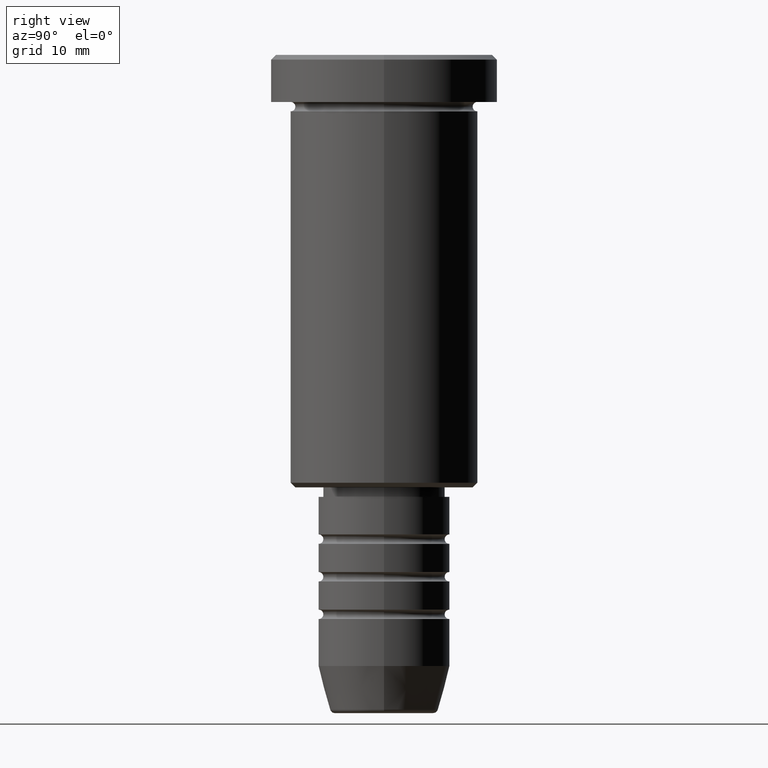
[diagram: clean part render]
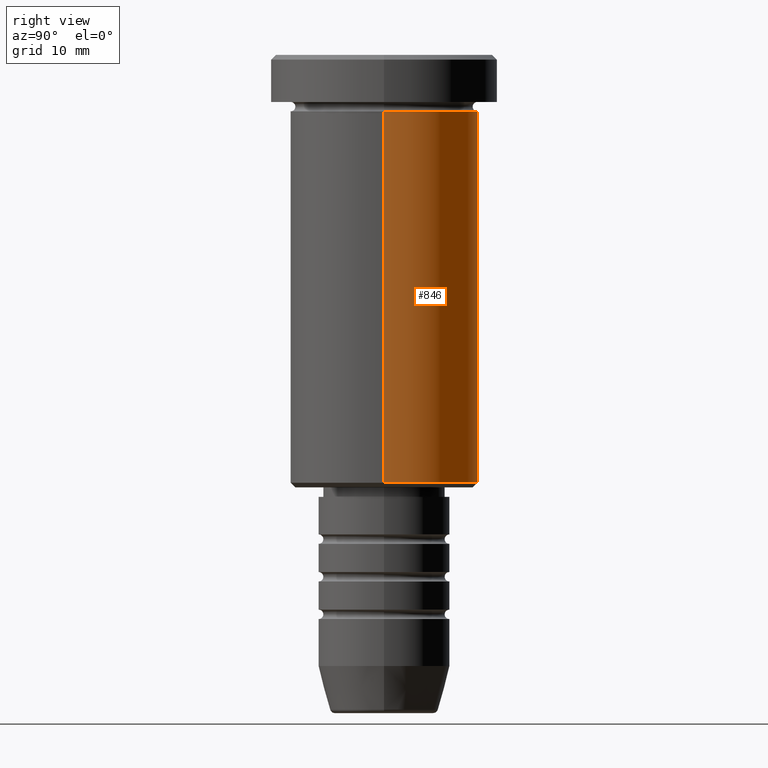
[diagram: same view with one face highlighted and labeled with its STEP entity id]
A machine part, right view. The second image highlights one B-rep face of the part: STEP entity #846.
In plain terms, the highlighted cylindrical surface (partial cylindrical patch) has radius 10 mm, axis along (-0, -0, 1).
Its self-contained STEP definition (entity closure, byte-faithful):
#95 = DIRECTION ( 'NONE',  ( -0.000000000000000000, -0.000000000000000000, 1.000000000000000000 ) ) ;
#147 = ORIENTED_EDGE ( 'NONE', *, *, #589, .T. ) ;
#149 = FACE_OUTER_BOUND ( 'NONE', #588, .T. ) ;
#159 = VERTEX_POINT ( 'NONE', #508 ) ;
#199 = DIRECTION ( 'NONE',  ( -0.000000000000000000, -0.000000000000000000, 1.000000000000000000 ) ) ;
#204 = DIRECTION ( 'NONE',  ( -1.000000000000000000, 0.000000000000000000, 0.000000000000000000 ) ) ;
#222 = DIRECTION ( 'NONE',  ( 1.000000000000000000, 0.000000000000000000, 0.000000000000000000 ) ) ;
#252 = VECTOR ( 'NONE', #1144, 1000.000000000000000 ) ;
#332 = CIRCLE ( 'NONE', #1170, 9.999999999999998224 ) ;
#387 = CARTESIAN_POINT ( 'NONE',  ( 0.000000000000000000, 0.000000000000000000, -45.50000000000001421 ) ) ;
#397 = VERTEX_POINT ( 'NONE', #638 ) ;
#483 = EDGE_CURVE ( 'NONE', #1102, #159, #1004, .T. ) ;
#508 = CARTESIAN_POINT ( 'NONE',  ( -10.00000000000000000, 1.224646799147353256E-15, -6.000000000000000000 ) ) ;
#519 = VERTEX_POINT ( 'NONE', #571 ) ;
#530 = LINE ( 'NONE', #1157, #252 ) ;
#550 = ORIENTED_EDGE ( 'NONE', *, *, #590, .F. ) ;
#571 = CARTESIAN_POINT ( 'NONE',  ( 9.999999999999998224, 0.000000000000000000, -45.50000000000001421 ) ) ;
#579 = CARTESIAN_POINT ( 'NONE',  ( -9.999999999999998224, 1.224646799147353059E-15, 0.000000000000000000 ) ) ;
#588 = EDGE_LOOP ( 'NONE', ( #147, #1028, #550, #1097 ) ) ;
#589 = EDGE_CURVE ( 'NONE', #519, #1102, #332, .T. ) ;
#590 = EDGE_CURVE ( 'NONE', #397, #159, #746, .T. ) ;
#614 = CARTESIAN_POINT ( 'NONE',  ( 0.000000000000000000, 0.000000000000000000, 0.000000000000000000 ) ) ;
#621 = AXIS2_PLACEMENT_3D ( 'NONE', #614, #681, #1045 ) ;
#638 = CARTESIAN_POINT ( 'NONE',  ( 10.00000000000000000, 0.000000000000000000, -6.000000000000000000 ) ) ;
#681 = DIRECTION ( 'NONE',  ( -0.000000000000000000, -0.000000000000000000, 1.000000000000000000 ) ) ;
#709 = AXIS2_PLACEMENT_3D ( 'NONE', #1130, #199, #222 ) ;
#746 = CIRCLE ( 'NONE', #709, 10.00000000000000000 ) ;
#766 = CYLINDRICAL_SURFACE ( 'NONE', #621, 9.999999999999998224 ) ;
#769 = EDGE_CURVE ( 'NONE', #519, #397, #530, .T. ) ;
#846 = ADVANCED_FACE ( 'NONE', ( #149 ), #766, .T. ) ;
#853 = DIRECTION ( 'NONE',  ( -0.000000000000000000, -0.000000000000000000, 1.000000000000000000 ) ) ;
#866 = VECTOR ( 'NONE', #95, 1000.000000000000000 ) ;
#1004 = LINE ( 'NONE', #579, #866 ) ;
#1028 = ORIENTED_EDGE ( 'NONE', *, *, #483, .T. ) ;
#1045 = DIRECTION ( 'NONE',  ( 1.000000000000000000, 0.000000000000000000, 0.000000000000000000 ) ) ;
#1097 = ORIENTED_EDGE ( 'NONE', *, *, #769, .F. ) ;
#1102 = VERTEX_POINT ( 'NONE', #1124 ) ;
#1124 = CARTESIAN_POINT ( 'NONE',  ( -9.999999999999998224, 1.224646799147353059E-15, -45.50000000000001421 ) ) ;
#1130 = CARTESIAN_POINT ( 'NONE',  ( 0.000000000000000000, 0.000000000000000000, -6.000000000000000000 ) ) ;
#1144 = DIRECTION ( 'NONE',  ( -0.000000000000000000, -0.000000000000000000, 1.000000000000000000 ) ) ;
#1157 = CARTESIAN_POINT ( 'NONE',  ( 9.999999999999998224, 0.000000000000000000, 0.000000000000000000 ) ) ;
#1170 = AXIS2_PLACEMENT_3D ( 'NONE', #387, #853, #204 ) ;